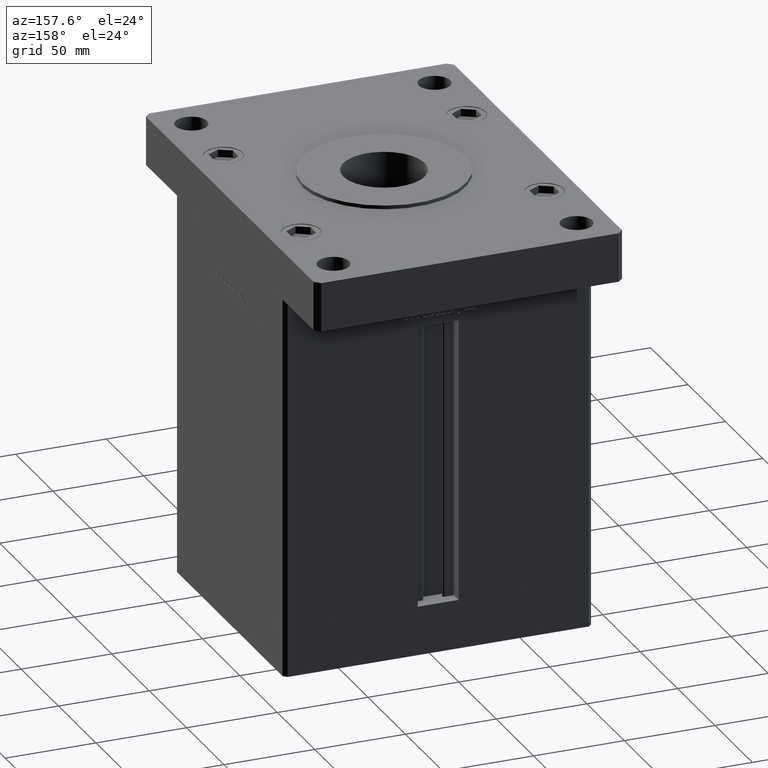
[diagram: clean part render]
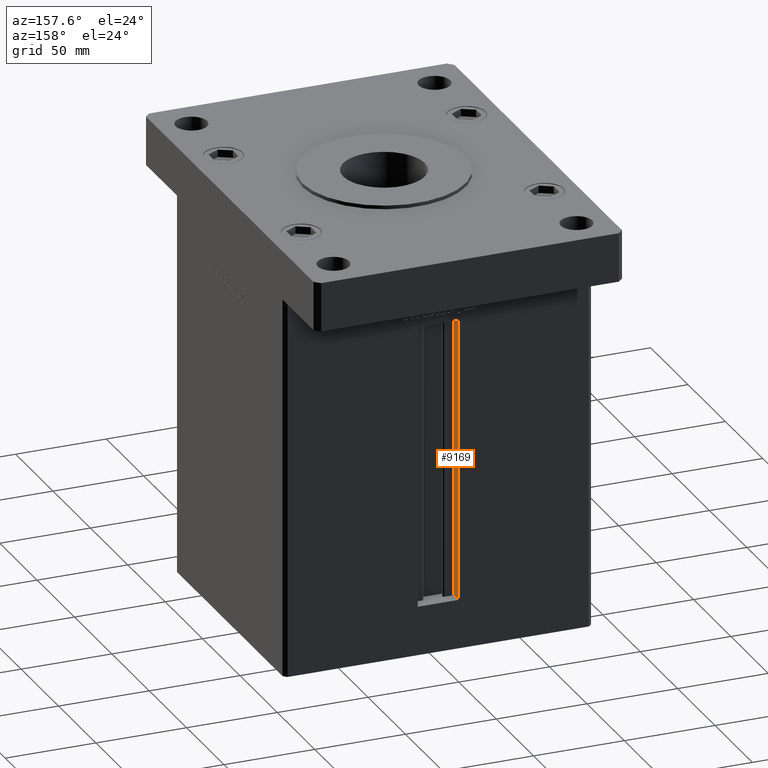
[diagram: same view with one face highlighted and labeled with its STEP entity id]
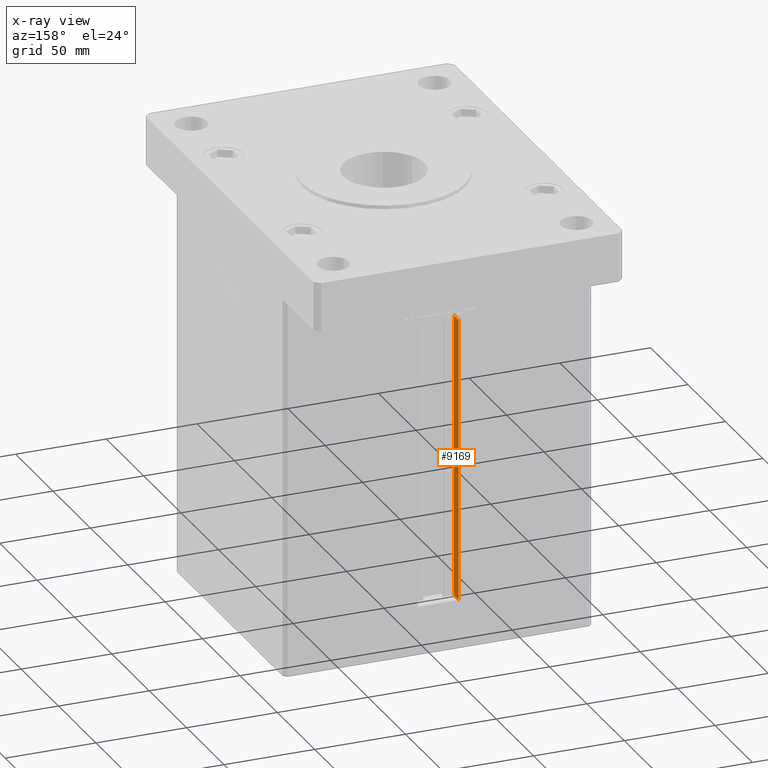
[diagram: x-ray of the same camera — body ghosted, the highlighted face saturated]
A machine part, auxiliary view. The second image highlights one B-rep face of the part: STEP entity #9169.
The next image is the same camera in x-ray: the body ghosted, the highlighted face saturated — about 0% of this face is hidden behind the body in this view.
In plain terms, the highlighted planar face has unit normal (-1, 0, 0).
Its self-contained STEP definition (entity closure, byte-faithful):
#819 = DIRECTION ( 'NONE',  ( -0.000000000000000000, -0.000000000000000000, 1.000000000000000000 ) ) ;
#1245 = DIRECTION ( 'NONE',  ( -0.000000000000000000, -1.000000000000000000, -0.000000000000000000 ) ) ;
#3441 = CARTESIAN_POINT ( 'NONE',  ( -11.25000000000000178, 65.99999999999997158, 0.000000000000000000 ) ) ;
#3576 = VECTOR ( 'NONE', #24288, 1000.000000000000000 ) ;
#4789 = AXIS2_PLACEMENT_3D ( 'NONE', #43371, #6544, #14648 ) ;
#6544 = DIRECTION ( 'NONE',  ( -1.000000000000000000, 0.000000000000000000, 0.000000000000000000 ) ) ;
#7778 = VERTEX_POINT ( 'NONE', #20972 ) ;
#9169 = ADVANCED_FACE ( 'NONE', ( #10330 ), #26852, .F. ) ;
#9559 = CARTESIAN_POINT ( 'NONE',  ( -11.25000000000000178, 72.49999999999998579, 156.0000000000000000 ) ) ;
#10330 = FACE_OUTER_BOUND ( 'NONE', #12072, .T. ) ;
#11765 = CARTESIAN_POINT ( 'NONE',  ( -11.25000000000000178, 65.99999999999997158, 0.000000000000000000 ) ) ;
#12072 = EDGE_LOOP ( 'NONE', ( #12138, #12196, #46466, #30864 ) ) ;
#12138 = ORIENTED_EDGE ( 'NONE', *, *, #27247, .F. ) ;
#12196 = ORIENTED_EDGE ( 'NONE', *, *, #34033, .F. ) ;
#14648 = DIRECTION ( 'NONE',  ( 0.000000000000000000, 0.000000000000000000, 1.000000000000000000 ) ) ;
#16392 = VERTEX_POINT ( 'NONE', #47761 ) ;
#20972 = CARTESIAN_POINT ( 'NONE',  ( -11.25000000000000178, 65.99999999999997158, 156.0000000000000000 ) ) ;
#21559 = LINE ( 'NONE', #38871, #31777 ) ;
#24049 = VERTEX_POINT ( 'NONE', #11765 ) ;
#24288 = DIRECTION ( 'NONE',  ( 0.000000000000000000, 1.000000000000000000, 0.000000000000000000 ) ) ;
#24540 = LINE ( 'NONE', #3441, #49294 ) ;
#26852 = PLANE ( 'NONE',  #4789 ) ;
#27247 = EDGE_CURVE ( 'NONE', #24049, #7778, #24540, .T. ) ;
#28355 = LINE ( 'NONE', #36213, #3576 ) ;
#30107 = VECTOR ( 'NONE', #819, 1000.000000000000000 ) ;
#30279 = EDGE_CURVE ( 'NONE', #7778, #39242, #28355, .T. ) ;
#30864 = ORIENTED_EDGE ( 'NONE', *, *, #30279, .F. ) ;
#31777 = VECTOR ( 'NONE', #1245, 1000.000000000000000 ) ;
#34033 = EDGE_CURVE ( 'NONE', #16392, #24049, #21559, .T. ) ;
#36213 = CARTESIAN_POINT ( 'NONE',  ( -11.25000000000000178, 0.000000000000000000, 156.0000000000000000 ) ) ;
#37260 = DIRECTION ( 'NONE',  ( -0.000000000000000000, -0.000000000000000000, 1.000000000000000000 ) ) ;
#37383 = LINE ( 'NONE', #41177, #30107 ) ;
#38871 = CARTESIAN_POINT ( 'NONE',  ( -11.25000000000000178, 65.99999999999997158, 0.000000000000000000 ) ) ;
#39242 = VERTEX_POINT ( 'NONE', #9559 ) ;
#39656 = EDGE_CURVE ( 'NONE', #16392, #39242, #37383, .T. ) ;
#41177 = CARTESIAN_POINT ( 'NONE',  ( -11.25000000000000178, 72.49999999999998579, 0.000000000000000000 ) ) ;
#43371 = CARTESIAN_POINT ( 'NONE',  ( -11.25000000000000178, 65.99999999999997158, 0.000000000000000000 ) ) ;
#46466 = ORIENTED_EDGE ( 'NONE', *, *, #39656, .T. ) ;
#47761 = CARTESIAN_POINT ( 'NONE',  ( -11.25000000000000178, 72.49999999999998579, 0.000000000000000000 ) ) ;
#49294 = VECTOR ( 'NONE', #37260, 1000.000000000000000 ) ;